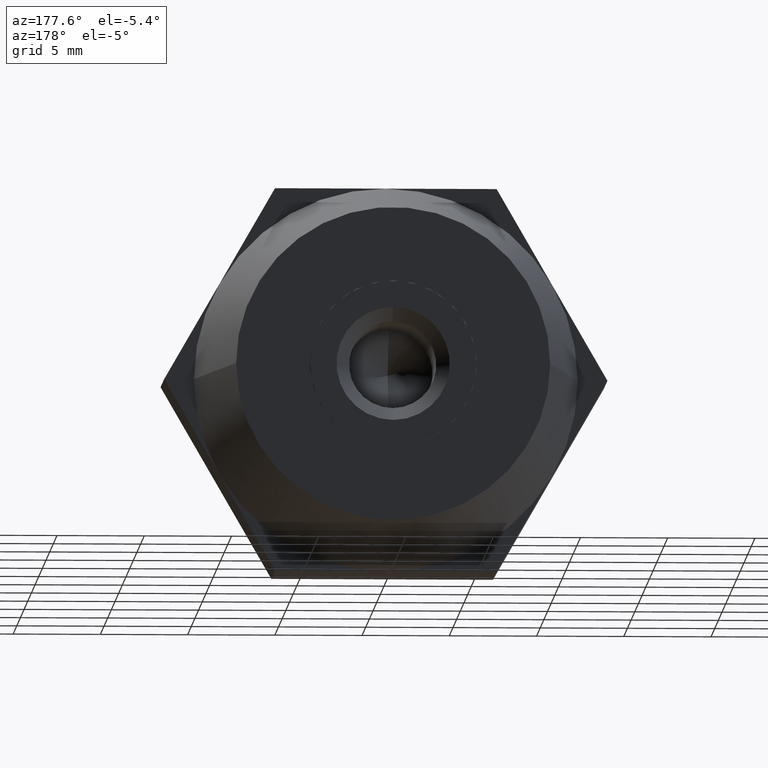
[diagram: clean part render]
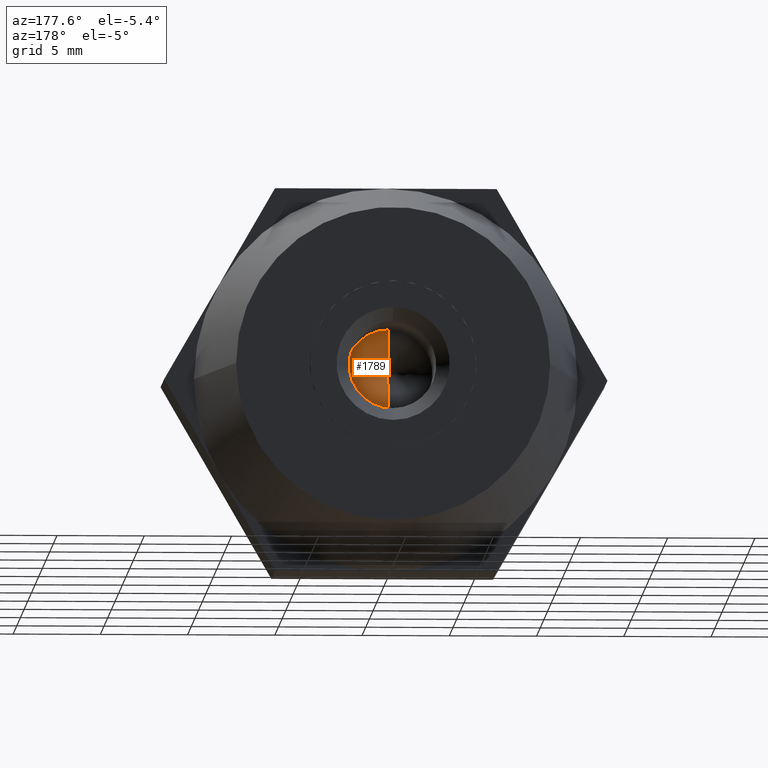
[diagram: same view with one face highlighted and labeled with its STEP entity id]
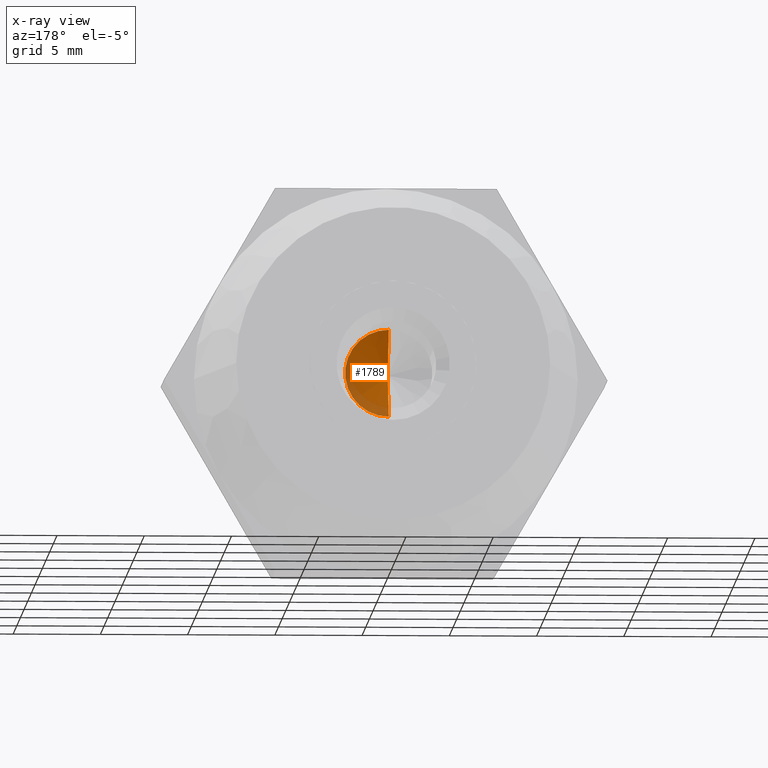
[diagram: x-ray of the same camera — body ghosted, the highlighted face saturated]
A machine part, auxiliary view. The second image highlights one B-rep face of the part: STEP entity #1789.
The next image is the same camera in x-ray: the body ghosted, the highlighted face saturated — about 19% of this face is hidden behind the body in this view.
In plain terms, the highlighted conical surface has half-angle 59 deg.
Its self-contained STEP definition (entity closure, byte-faithful):
#14 = CARTESIAN_POINT ( 'NONE',  ( 0.0000000000000000000, 2.000000000000000000, 0.0000000000000000000 ) ) ;
#301 = AXIS2_PLACEMENT_3D ( 'NONE', #3031, #3355, #3004 ) ;
#307 = EDGE_LOOP ( 'NONE', ( #3490, #3176, #2435 ) ) ;
#464 = DIRECTION ( 'NONE',  ( 0.0000000000000000000, 0.5150380749100549300, 0.8571673007021118900 ) ) ;
#585 = CONICAL_SURFACE ( 'NONE', #301, 2.500000000000000000, 1.029744258676653600 ) ;
#843 = VERTEX_POINT ( 'NONE', #3828 ) ;
#933 = EDGE_CURVE ( 'NONE', #3533, #843, #3617, .T. ) ;
#1133 = LINE ( 'NONE', #2273, #1327 ) ;
#1289 = FACE_OUTER_BOUND ( 'NONE', #307, .T. ) ;
#1327 = VECTOR ( 'NONE', #464, 999.9999999999998900 ) ;
#1334 = VECTOR ( 'NONE', #3689, 999.9999999999998900 ) ;
#1498 = VERTEX_POINT ( 'NONE', #3642 ) ;
#1759 = LINE ( 'NONE', #2554, #1334 ) ;
#1789 = ADVANCED_FACE ( 'NONE', ( #1289 ), #585, .F. ) ;
#2273 = CARTESIAN_POINT ( 'NONE',  ( 0.0000000000000000000, 2.000000000000000000, 2.500000000000000000 ) ) ;
#2377 = CARTESIAN_POINT ( 'NONE',  ( 0.0000000000000000000, 2.000000000000000000, 2.500000000000000000 ) ) ;
#2435 = ORIENTED_EDGE ( 'NONE', *, *, #933, .T. ) ;
#2499 = AXIS2_PLACEMENT_3D ( 'NONE', #14, #2698, #3608 ) ;
#2554 = CARTESIAN_POINT ( 'NONE',  ( 3.061616997868383100E-016, 2.000000000000000000, -2.500000000000000000 ) ) ;
#2698 = DIRECTION ( 'NONE',  ( 0.0000000000000000000, 1.000000000000000000, 0.0000000000000000000 ) ) ;
#2779 = EDGE_CURVE ( 'NONE', #1498, #843, #1759, .T. ) ;
#3004 = DIRECTION ( 'NONE',  ( 0.0000000000000000000, 0.0000000000000000000, 1.000000000000000000 ) ) ;
#3031 = CARTESIAN_POINT ( 'NONE',  ( 0.0000000000000000000, 2.000000000000000000, 0.0000000000000000000 ) ) ;
#3176 = ORIENTED_EDGE ( 'NONE', *, *, #3460, .T. ) ;
#3355 = DIRECTION ( 'NONE',  ( 0.0000000000000000000, 1.000000000000000000, 0.0000000000000000000 ) ) ;
#3460 = EDGE_CURVE ( 'NONE', #1498, #3533, #1133, .T. ) ;
#3490 = ORIENTED_EDGE ( 'NONE', *, *, #2779, .F. ) ;
#3533 = VERTEX_POINT ( 'NONE', #2377 ) ;
#3608 = DIRECTION ( 'NONE',  ( 0.0000000000000000000, 0.0000000000000000000, 1.000000000000000000 ) ) ;
#3617 = CIRCLE ( 'NONE', #2499, 2.500000000000000000 ) ;
#3642 = CARTESIAN_POINT ( 'NONE',  ( -1.837497175889724800E-015, 0.4978484524310979900, 0.0000000000000000000 ) ) ;
#3689 = DIRECTION ( 'NONE',  ( 1.049727191138618200E-016, 0.5150380749100549300, -0.8571673007021118900 ) ) ;
#3828 = CARTESIAN_POINT ( 'NONE',  ( 3.061616997868383100E-016, 2.000000000000000000, -2.500000000000000000 ) ) ;